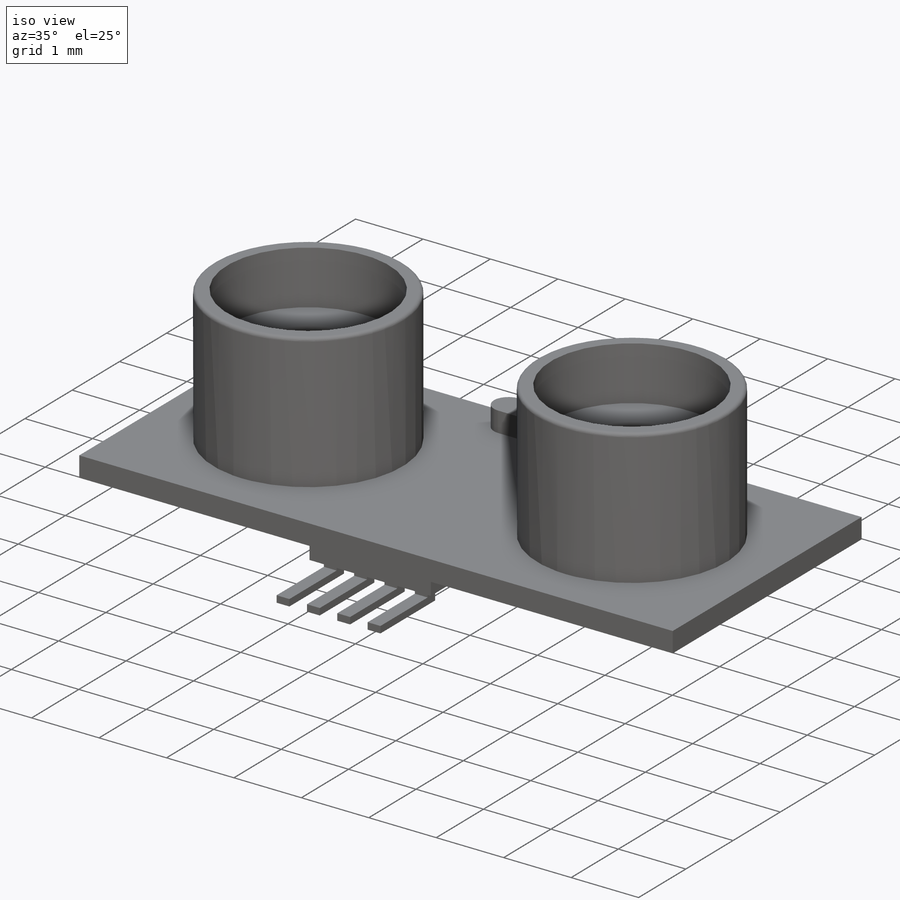
[diagram: iso view]
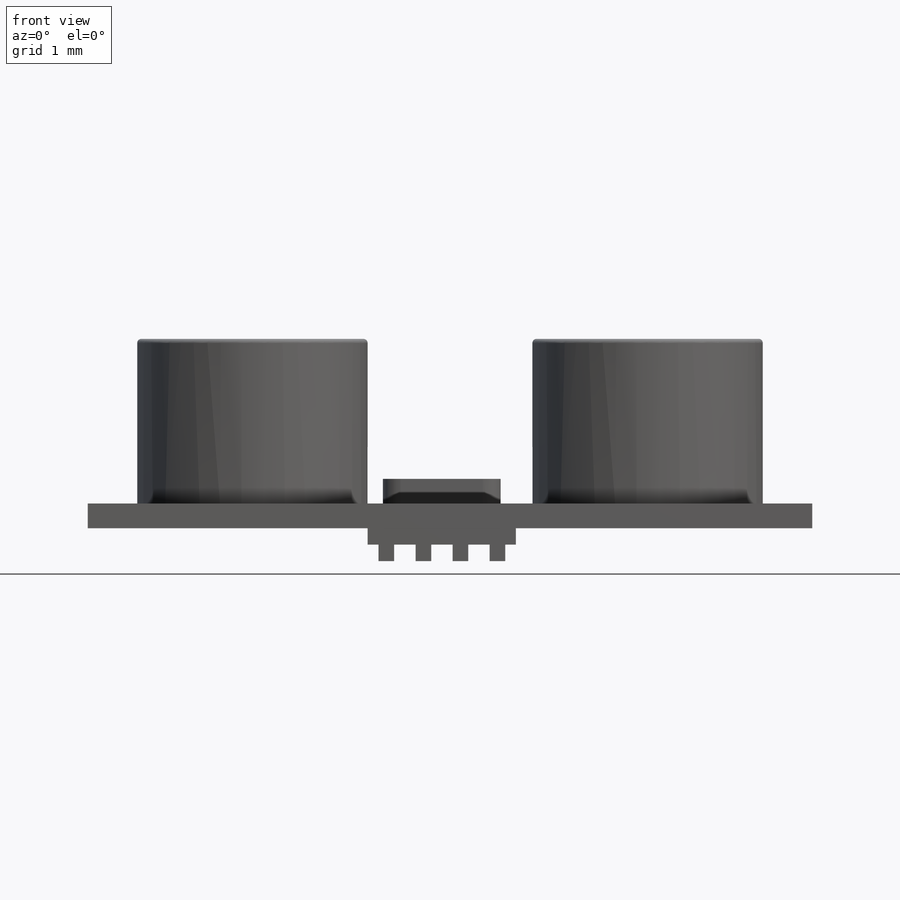
[diagram: front view]
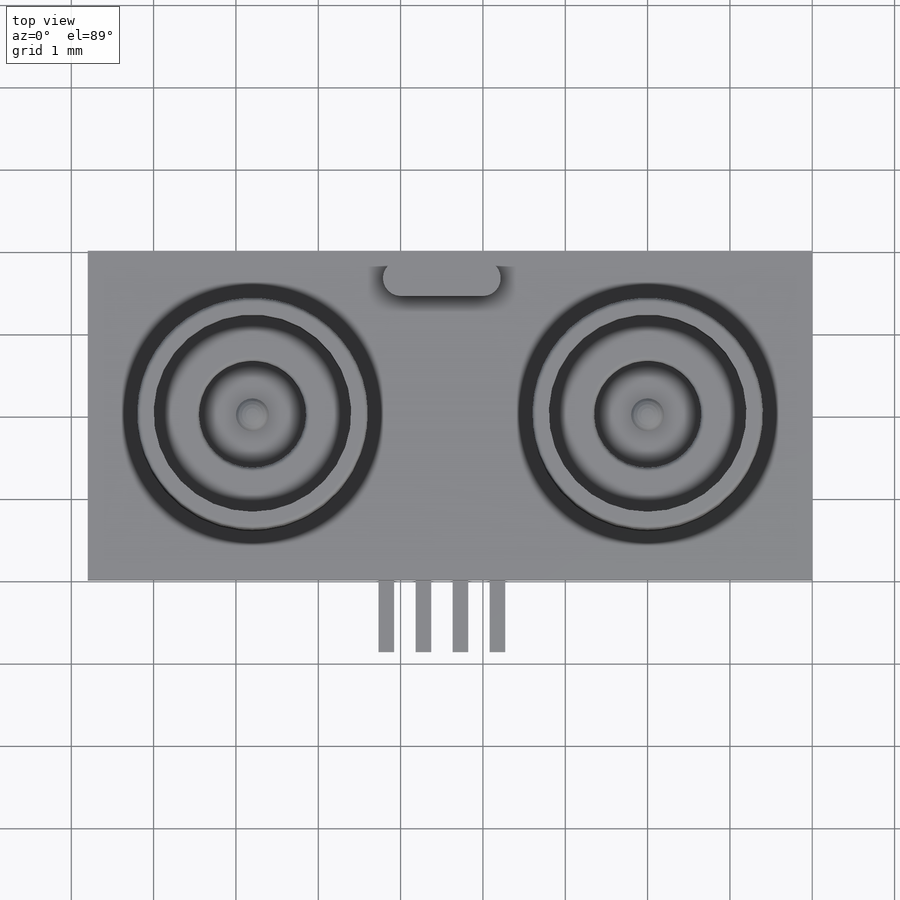
[diagram: top view]
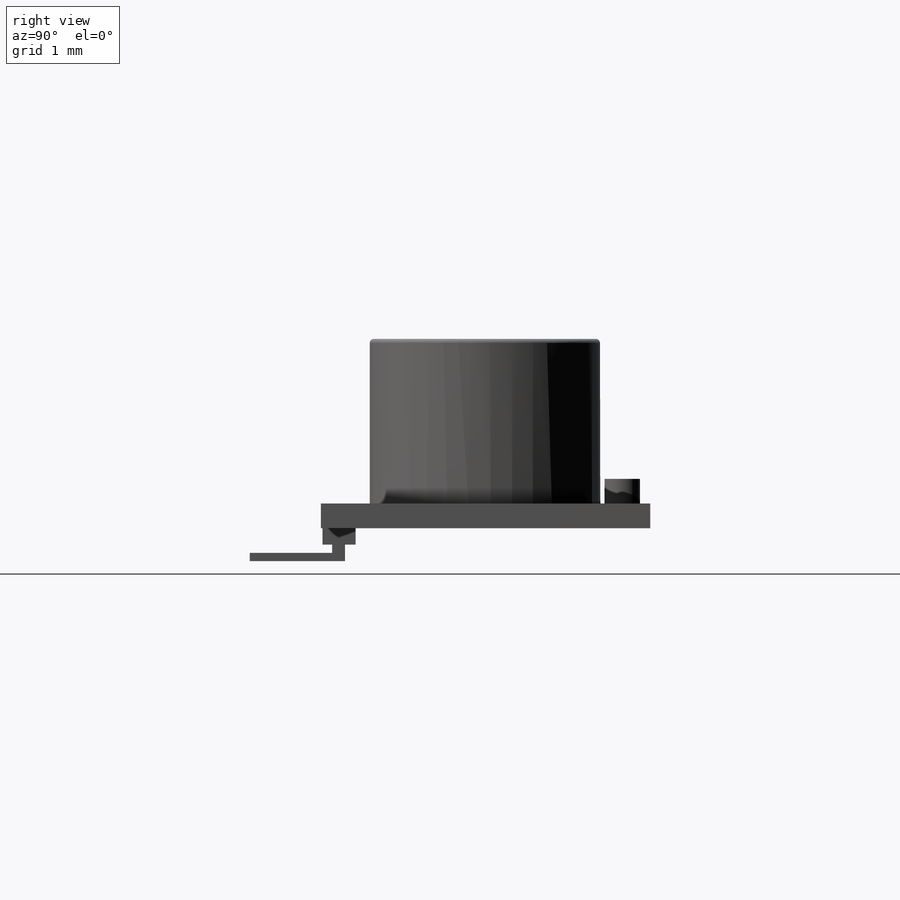
[diagram: right view]
SOLIDWORKS PART (.sldprt)
format: sldprt  version: not decoded by parser v0  size: 346,112 bytes
history: native  units: mm
features: sketch x9, extrude x7, fillet x3, cut_extrude x2, material x1, pattern_linear x1 (+13 scaffold rows collapsed)
feature tree (36):
  scaffold x13  (default folders/planes/origin — collapsed)
  material  "Material <not specified>"
  sketch  "Sketch1"  dims[D1=8.8mm D2=4.0mm]
  extrude  "Boss-Extrude1"  Depth=0.3mm
  sketch  "Sketch2"  dims[c1.D3=2.8mm c1.D4=2.8mm c1.D1=5.0mm c1.D2=2.0mm c2.D1=2.0mm]
  extrude  "Boss-Extrude2"  Depth=2mm
  sketch  "Sketch3"  dims[c1.D1=2.4mm c1.D2=2.4mm c2.D1=2.0mm c2.D2=~2.000507mm c3.D2=90.0deg]
  cut_extrude  "Cut-Extrude1"  Depth=0.8mm
  sketch  "Sketch4"  dims[D1=1.3mm D2=1.3mm]
  cut_extrude  "Cut-Extrude2"  Depth=0.4mm
  sketch  "Sketch5"  dims[D1=0.4mm D2=0.4mm]
  extrude  "Boss-Extrude3"  Depth=0.1mm
  fillet  "Fillet3"  Radius=0.2mm
  fillet  "Fillet4"  Radius=0.05mm
  fillet  "Fillet5"  Radius=0.05mm
  sketch  "Sketch7"  dims[D1=1.0mm D2=3.8mm]
  extrude  "Boss-Extrude4"  Depth=0.3mm
  sketch  "Sketch8"  dims[D1=1.8mm D2=3.4mm D3=0.02mm]
  extrude  "Boss-Extrude5"  Depth=0.2mm
  sketch  "Sketch9"
  extrude  "Boss-Extrude6"  Depth=0.2mm
  pattern_linear  "LPattern1"  Count1=4 Count2=1 Spacing1=0.45mm Spacing2=10mm
  sketch  "Sketch10"
  extrude  "Boss-Extrude7"  Depth=1mm
decode coverage: 20 of 22 modeling features carry decoded parameters
note: ~ marks probable driven/reference dimensions
note: suppression state not decoded; provenance and decode notes live in map.json
